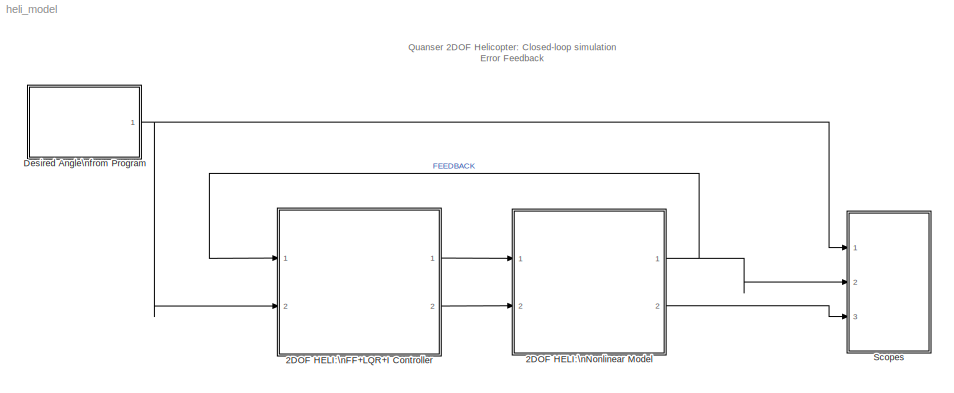
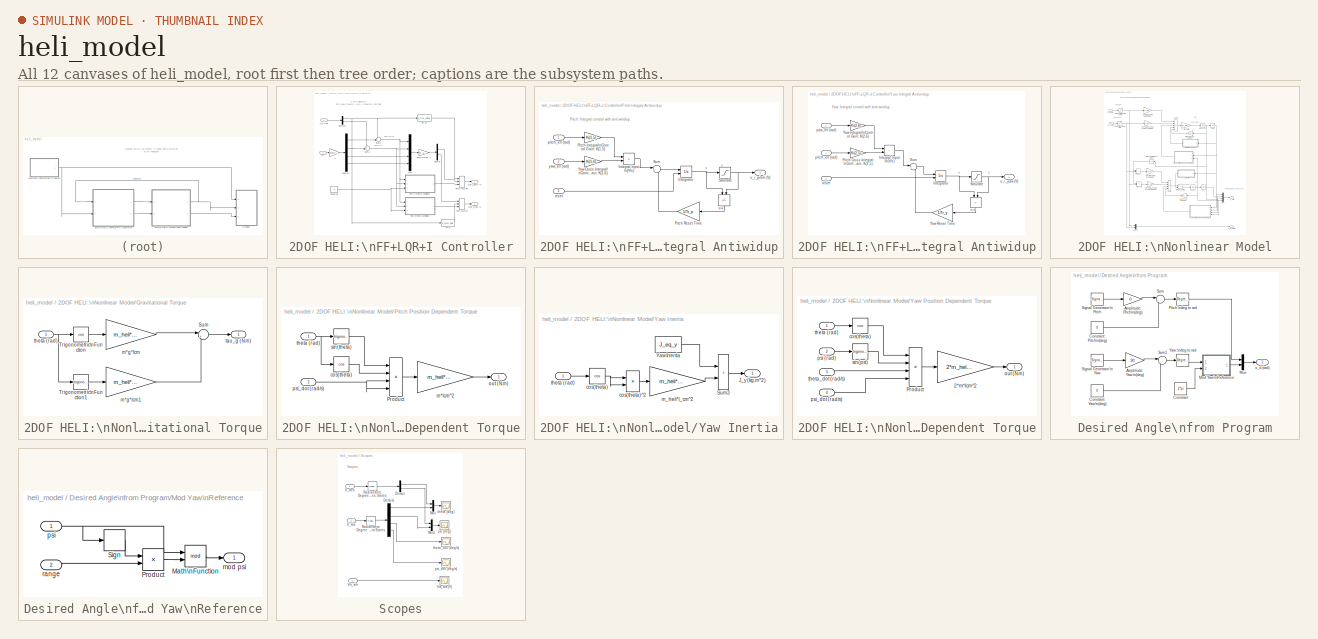
[diagram: thumbnail index - all 12 canvases of the model, root first then tree order]
MODEL heli_model
KIND model
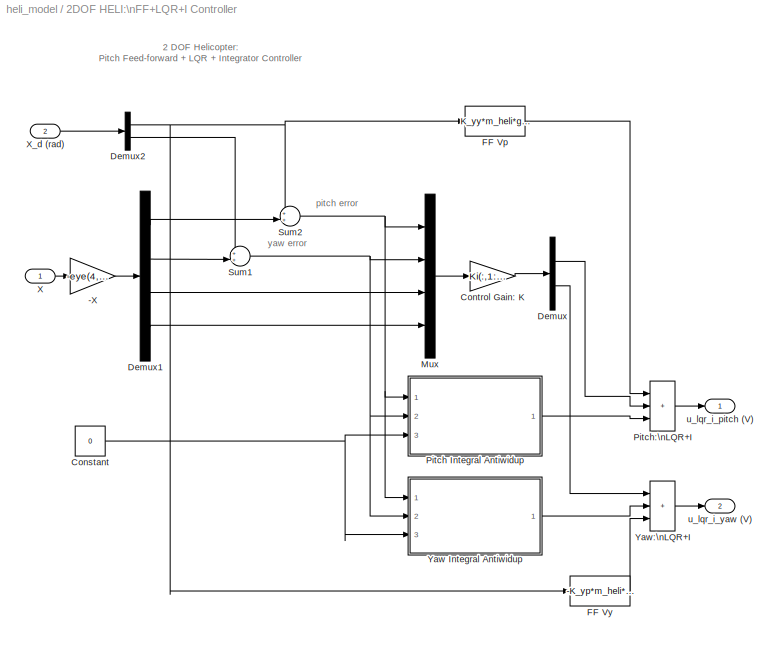
BLOCK [SubSystem] 2DOF HELI:\nFF+LQR+I Controller
  AncestorBlock = heli_2d_lib/2DOF HELI:\nFF+LQR+I Controller
  Ports = [2, 2]
  RequestExecContextInheritance = off
  SID = 1
BLOCK [Gain] 2DOF HELI:\nFF+LQR+I Controller/-X
  Gain = -eye(4,4)
  Multiplication = Matrix(K*u)
  SID = 1:3
BLOCK [Constant] 2DOF HELI:\nFF+LQR+I Controller/Constant
  SID = 1:4
  Value = 0
BLOCK [Gain] 2DOF HELI:\nFF+LQR+I Controller/Control Gain: K
  Gain = Ki(:,1:4)
  Multiplication = Matrix(K*u)
  SID = 1:5
BLOCK [Demux] 2DOF HELI:\nFF+LQR+I Controller/Demux
  Outputs = 2
  Ports = [1, 2]
  SID = 1:6
BLOCK [Demux] 2DOF HELI:\nFF+LQR+I Controller/Demux1
  Ports = [1, 4]
  SID = 1:7
BLOCK [Demux] 2DOF HELI:\nFF+LQR+I Controller/Demux2
  Outputs = 2
  Ports = [1, 2]
  SID = 1:8
BLOCK [Fcn] 2DOF HELI:\nFF+LQR+I Controller/FF Vp
  Expr = K_yy*m_heli*g*(h*sin(u[1]) + Rc*cos(u[1]))  /  (K_pp*K_yy-K_py*K_yp)
  SID = 1:9
BLOCK [Fcn] 2DOF HELI:\nFF+LQR+I Controller/FF Vy
  Expr = -K_yp*m_heli*g*(h*sin(u[1]) + Rc*cos(u[1]))  /  (K_pp*K_yy-K_py*K_yp)
  SID = 1:10
BLOCK [Mux] 2DOF HELI:\nFF+LQR+I Controller/Mux
  DisplayOption = bar
  Ports = [4, 1]
  SID = 1:11
BLOCK [SubSystem] 2DOF HELI:\nFF+LQR+I Controller/Pitch Integral Antiwidup
  AncestorBlock = heli_2d_lib/2DOF HELI:\nFF+LQR+I Controller/Yaw Integral Antiwidup
  Ports = [3, 1]
  RequestExecContextInheritance = off
  SID = 1:12
BLOCK [Sum] 2DOF HELI:\nFF+LQR+I Controller/Pitch Integral Antiwidup/Integral Input \n(V//s)
  IconShape = rectangular
  Ports = [2, 1]
  SID = 1:12:4
BLOCK [Integrator] 2DOF HELI:\nFF+LQR+I Controller/Pitch Integral Antiwidup/Integrator
  ExternalReset = rising
  Ports = [2, 1]
  SID = 1:12:5
BLOCK [Gain] 2DOF HELI:\nFF+LQR+I Controller/Pitch Integral Antiwidup/Pitch Integral\nControl Gain: K(1,5)
  Gain = Ki(1,5)
  Multiplication = Matrix(K*u)
  SID = 1:12:6
BLOCK [Gain] 2DOF HELI:\nFF+LQR+I Controller/Pitch Integral Antiwidup/Pitch Reset Time
  Gain = 1/Tr_p
  SID = 1:12:7
BLOCK [Saturate] 2DOF HELI:\nFF+LQR+I Controller/Pitch Integral Antiwidup/Saturate
  LowerLimit = -SAT_INT_ERR_PITCH
  SID = 1:12:8
  UpperLimit = SAT_INT_ERR_PITCH
BLOCK [Sum] 2DOF HELI:\nFF+LQR+I Controller/Pitch Integral Antiwidup/Sum
  Inputs = |++
  Ports = [2, 1]
  SID = 1:12:9
BLOCK [Gain] 2DOF HELI:\nFF+LQR+I Controller/Pitch Integral Antiwidup/Yaw Cross-Integral\nControl Gain: K(1,6)
  Gain = Ki(1,6)
  Multiplication = Matrix(K*u)
  SID = 1:12:10
BLOCK [Inport] 2DOF HELI:\nFF+LQR+I Controller/Pitch Integral Antiwidup/pitch_err (rad)
  SID = 1:12:1
BLOCK [Inport] 2DOF HELI:\nFF+LQR+I Controller/Pitch Integral Antiwidup/reset
  Port = 3
  SID = 1:12:3
BLOCK [Sum] 2DOF HELI:\nFF+LQR+I Controller/Pitch Integral Antiwidup/u-v
  IconShape = rectangular
  Inputs = -+
  NameLocation = right
  Ports = [2, 1]
  SID = 1:12:11
BLOCK [Outport] 2DOF HELI:\nFF+LQR+I Controller/Pitch Integral Antiwidup/u_i_pitch (V)
  SID = 1:12:12
BLOCK [Inport] 2DOF HELI:\nFF+LQR+I Controller/Pitch Integral Antiwidup/yaw_err (rad)
  Port = 2
  SID = 1:12:2
BLOCK [Sum] 2DOF HELI:\nFF+LQR+I Controller/Pitch:\nLQR+I
  IconShape = rectangular
  Inputs = +++
  Ports = [3, 1]
  SID = 1:13
BLOCK [Sum] 2DOF HELI:\nFF+LQR+I Controller/Sum1
  Inputs = ++|
  Ports = [2, 1]
  SID = 1:14
BLOCK [Sum] 2DOF HELI:\nFF+LQR+I Controller/Sum2
  Inputs = ++|
  Ports = [2, 1]
  SID = 1:15
BLOCK [Inport] 2DOF HELI:\nFF+LQR+I Controller/X
  SID = 1:1
BLOCK [Inport] 2DOF HELI:\nFF+LQR+I Controller/X_d (rad)
  Port = 2
  SID = 1:2
BLOCK [SubSystem] 2DOF HELI:\nFF+LQR+I Controller/Yaw Integral Antiwidup
  Ports = [3, 1]
  RequestExecContextInheritance = off
  SID = 1:16
BLOCK [Sum] 2DOF HELI:\nFF+LQR+I Controller/Yaw Integral Antiwidup/Integral Input \n(V//s)
  IconShape = rectangular
  Ports = [2, 1]
  SID = 1:20
BLOCK [Integrator] 2DOF HELI:\nFF+LQR+I Controller/Yaw Integral Antiwidup/Integrator
  ExternalReset = rising
  Ports = [2, 1]
  SID = 1:21
BLOCK [Gain] 2DOF HELI:\nFF+LQR+I Controller/Yaw Integral Antiwidup/Pitch Cross-Integral\nControl Gain: K(2,5)
  Gain = Ki(2,5)
  Multiplication = Matrix(K*u)
  SID = 1:22
BLOCK [Saturate] 2DOF HELI:\nFF+LQR+I Controller/Yaw Integral Antiwidup/Saturate
  LowerLimit = -SAT_INT_ERR_YAW
  SID = 1:23
  UpperLimit = SAT_INT_ERR_YAW
BLOCK [Sum] 2DOF HELI:\nFF+LQR+I Controller/Yaw Integral Antiwidup/Sum
  Inputs = |++
  Ports = [2, 1]
  SID = 1:24
BLOCK [Gain] 2DOF HELI:\nFF+LQR+I Controller/Yaw Integral Antiwidup/Yaw Integral\nControl Gain: K(2,6)
  Gain = Ki(2,6)
  Multiplication = Matrix(K*u)
  SID = 1:25
BLOCK [Gain] 2DOF HELI:\nFF+LQR+I Controller/Yaw Integral Antiwidup/Yaw Reset Time
  Gain = 1/Tr_y
  SID = 1:26
BLOCK [Inport] 2DOF HELI:\nFF+LQR+I Controller/Yaw Integral Antiwidup/pitch_err (rad)
  SID = 1:17
BLOCK [Inport] 2DOF HELI:\nFF+LQR+I Controller/Yaw Integral Antiwidup/reset
  Port = 3
  SID = 1:19
BLOCK [Sum] 2DOF HELI:\nFF+LQR+I Controller/Yaw Integral Antiwidup/u-v
  IconShape = rectangular
  Inputs = -+
  NameLocation = right
  Ports = [2, 1]
  SID = 1:27
BLOCK [Outport] 2DOF HELI:\nFF+LQR+I Controller/Yaw Integral Antiwidup/u_i_yaw (V)
  SID = 1:28
BLOCK [Inport] 2DOF HELI:\nFF+LQR+I Controller/Yaw Integral Antiwidup/yaw_err (rad)
  Port = 2
  SID = 1:18
BLOCK [Sum] 2DOF HELI:\nFF+LQR+I Controller/Yaw:\nLQR+I
  IconShape = rectangular
  Inputs = +++
  Ports = [3, 1]
  SID = 1:32
BLOCK [Outport] 2DOF HELI:\nFF+LQR+I Controller/u_lqr_i_pitch (V)
  SID = 1:33
BLOCK [Outport] 2DOF HELI:\nFF+LQR+I Controller/u_lqr_i_yaw (V)
  Port = 2
  SID = 1:34
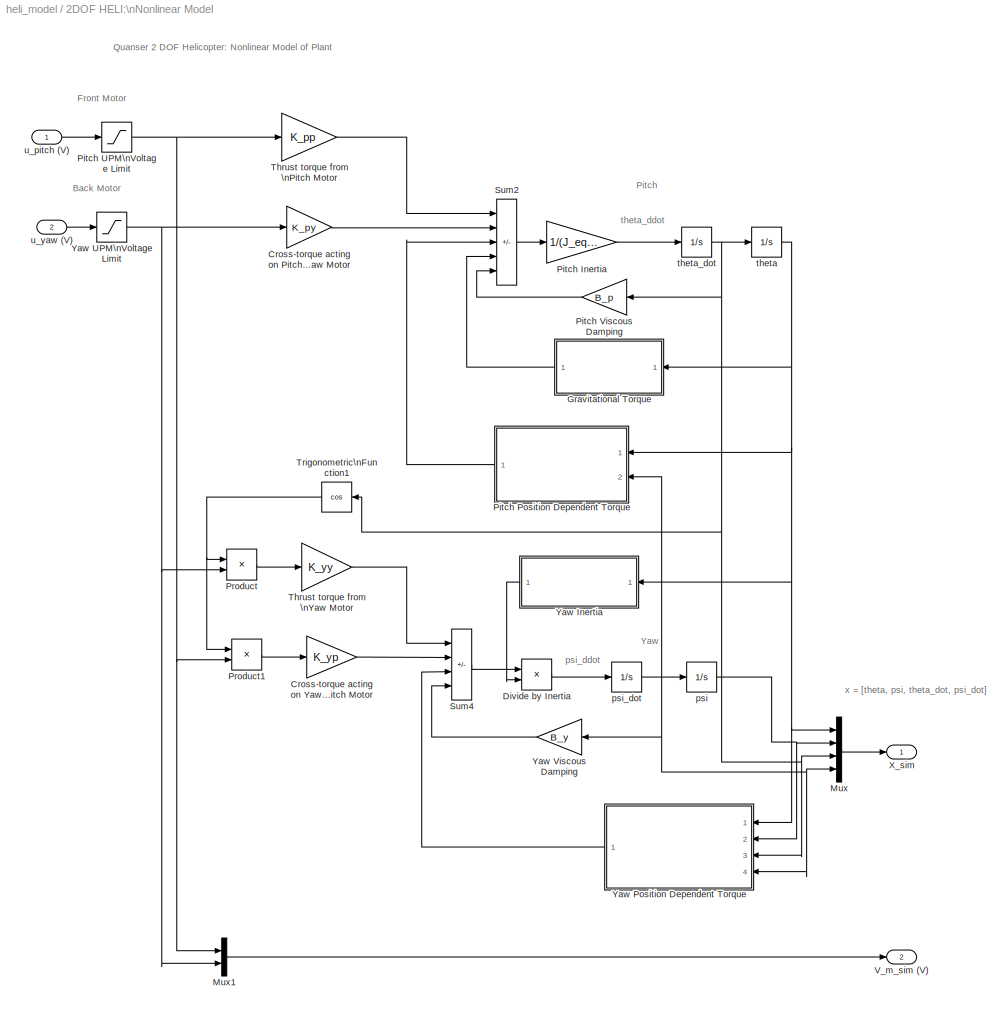
BLOCK [SubSystem] 2DOF HELI:\nNonlinear Model
  AncestorBlock = heli_2d_lib/2DOF HELI:\nNonlinear Model
  Ports = [2, 2]
  RequestExecContextInheritance = off
  SID = 2
BLOCK [Gain] 2DOF HELI:\nNonlinear Model/Cross-torque acting on Pitch \nfrom Yaw Motor
  Gain = K_py
  SID = 2:3
BLOCK [Gain] 2DOF HELI:\nNonlinear Model/Cross-torque acting on Yaw \nfrom Pitch Motor
  Gain = K_yp
  SID = 2:4
BLOCK [Product] 2DOF HELI:\nNonlinear Model/Divide by Inertia
  Inputs = */
  Ports = [2, 1]
  SID = 2:5
BLOCK [SubSystem] 2DOF HELI:\nNonlinear Model/Gravitational Torque
  Ports = [1, 1]
  RequestExecContextInheritance = off
  SID = 2:6
BLOCK [Sum] 2DOF HELI:\nNonlinear Model/Gravitational Torque/Sum
  Inputs = |++
  Ports = [2, 1]
  SID = 2:8
BLOCK [Trigonometry] 2DOF HELI:\nNonlinear Model/Gravitational Torque/Trigonometric\nFunction
  Operator = cos
  OutputSignalType = real
  Ports = [1, 1]
  SID = 2:9
BLOCK [Trigonometry] 2DOF HELI:\nNonlinear Model/Gravitational Torque/Trigonometric\nFunction1
  OutputSignalType = real
  Ports = [1, 1]
  SID = 2:10
BLOCK [Gain] 2DOF HELI:\nNonlinear Model/Gravitational Torque/m*g*lcm
  Gain = m_heli*g*l_cm
  SID = 2:11
BLOCK [Gain] 2DOF HELI:\nNonlinear Model/Gravitational Torque/m*g*lcm1
  Gain = m_heli*g*h
  SID = 2:12
BLOCK [Outport] 2DOF HELI:\nNonlinear Model/Gravitational Torque/tau_g (N.m)
  SID = 2:13
BLOCK [Inport] 2DOF HELI:\nNonlinear Model/Gravitational Torque/theta (rad)
  SID = 2:7
BLOCK [Mux] 2DOF HELI:\nNonlinear Model/Mux
  DisplayOption = bar
  Ports = [4, 1]
  SID = 2:14
BLOCK [Mux] 2DOF HELI:\nNonlinear Model/Mux1
  DisplayOption = bar
  Inputs = 2
  Ports = [2, 1]
  SID = 2:15
BLOCK [Gain] 2DOF HELI:\nNonlinear Model/Pitch Inertia
  Gain = 1/(J_eq_p+m_heli*l_cm^2)
  SID = 2:16
BLOCK [SubSystem] 2DOF HELI:\nNonlinear Model/Pitch Position Dependent Torque
  AncestorBlock = heli_2d_lib/2DOF Helicopter:\nNonlinear Model/Yaw Nonlinear Element
  Ports = [2, 1]
  RequestExecContextInheritance = off
  SID = 2:17
BLOCK [Product] 2DOF HELI:\nNonlinear Model/Pitch Position Dependent Torque/Product
  Inputs = 4
  Ports = [4, 1]
  RndMeth = Zero
  SID = 2:17:3
BLOCK [Trigonometry] 2DOF HELI:\nNonlinear Model/Pitch Position Dependent Torque/cos(theta)
  Operator = cos
  OutputSignalType = real
  Ports = [1, 1]
  SID = 2:17:4
BLOCK [Gain] 2DOF HELI:\nNonlinear Model/Pitch Position Dependent Torque/m*lcm^2
  Gain = m_heli*l_cm^2
  SID = 2:17:5
BLOCK [Outport] 2DOF HELI:\nNonlinear Model/Pitch Position Dependent Torque/out (N.m)
  SID = 2:17:7
BLOCK [Inport] 2DOF HELI:\nNonlinear Model/Pitch Position Dependent Torque/psi_dot (rad//s)
  Port = 2
  SID = 2:17:2
BLOCK [Trigonometry] 2DOF HELI:\nNonlinear Model/Pitch Position Dependent Torque/sin(theta)
  OutputSignalType = real
  Ports = [1, 1]
  SID = 2:17:6
BLOCK [Inport] 2DOF HELI:\nNonlinear Model/Pitch Position Dependent Torque/theta (rad)
  SID = 2:17:1
BLOCK [Saturate] 2DOF HELI:\nNonlinear Model/Pitch UPM\nVoltage Limit
  LowerLimit = - VMAX_UPM_P
  SID = 2:18
  UpperLimit = VMAX_UPM_P
BLOCK [Gain] 2DOF HELI:\nNonlinear Model/Pitch Viscous Damping
  Gain = B_p
  SID = 2:19
BLOCK [Product] 2DOF HELI:\nNonlinear Model/Product
  Ports = [2, 1]
  RndMeth = Zero
  SID = 2:20
BLOCK [Product] 2DOF HELI:\nNonlinear Model/Product1
  Ports = [2, 1]
  RndMeth = Zero
  SID = 2:21
BLOCK [Sum] 2DOF HELI:\nNonlinear Model/Sum2
  IconShape = rectangular
  Inputs = ++---
  Ports = [5, 1]
  SID = 2:22
BLOCK [Sum] 2DOF HELI:\nNonlinear Model/Sum4
  IconShape = rectangular
  Inputs = +++-
  Ports = [4, 1]
  SID = 2:23
BLOCK [Gain] 2DOF HELI:\nNonlinear Model/Thrust torque from \nPitch Motor
  Gain = K_pp
  SID = 2:24
BLOCK [Gain] 2DOF HELI:\nNonlinear Model/Thrust torque from \nYaw Motor
  Gain = K_yy
  SID = 2:25
BLOCK [Trigonometry] 2DOF HELI:\nNonlinear Model/Trigonometric\nFunction1
  NameLocation = top
  Operator = cos
  OutputSignalType = real
  Ports = [1, 1]
  SID = 2:26
BLOCK [Outport] 2DOF HELI:\nNonlinear Model/V_m_sim (V)
  Port = 2
  SID = 2:52
BLOCK [Outport] 2DOF HELI:\nNonlinear Model/X_sim
  SID = 2:51
BLOCK [SubSystem] 2DOF HELI:\nNonlinear Model/Yaw Inertia
  Ports = [1, 1]
  RequestExecContextInheritance = off
  SID = 2:27
BLOCK [Outport] 2DOF HELI:\nNonlinear Model/Yaw Inertia/J_y (kg.m^2)
  SID = 2:34
BLOCK [Sum] 2DOF HELI:\nNonlinear Model/Yaw Inertia/Sum3
  IconShape = rectangular
  Ports = [2, 1]
  SID = 2:29
BLOCK [Constant] 2DOF HELI:\nNonlinear Model/Yaw Inertia/Yaw Inertia
  SID = 2:30
  Value = J_eq_y
BLOCK [Trigonometry] 2DOF HELI:\nNonlinear Model/Yaw Inertia/cos(theta)
  Operator = cos
  OutputSignalType = real
  Ports = [1, 1]
  SID = 2:31
BLOCK [Product] 2DOF HELI:\nNonlinear Model/Yaw Inertia/cos(theta)^2
  Ports = [2, 1]
  RndMeth = Zero
  SID = 2:32
BLOCK [Gain] 2DOF HELI:\nNonlinear Model/Yaw Inertia/m_heli*l_cm^2
  Gain = m_heli*l_cm^2
  SID = 2:33
BLOCK [Inport] 2DOF HELI:\nNonlinear Model/Yaw Inertia/theta (rad)
  SID = 2:28
BLOCK [SubSystem] 2DOF HELI:\nNonlinear Model/Yaw Position Dependent Torque
  Ports = [4, 1]
  RequestExecContextInheritance = off
  SID = 2:35
BLOCK [Gain] 2DOF HELI:\nNonlinear Model/Yaw Position Dependent Torque/2*m*lcm^2
  Gain = 2*m_heli*l_cm^2
  SID = 2:40
BLOCK [Product] 2DOF HELI:\nNonlinear Model/Yaw Position Dependent Torque/Product
  Inputs = 4
  Ports = [4, 1]
  RndMeth = Zero
  SID = 2:41
BLOCK [Trigonometry] 2DOF HELI:\nNonlinear Model/Yaw Position Dependent Torque/cos(theta)
  Operator = cos
  OutputSignalType = real
  Ports = [1, 1]
  SID = 2:42
BLOCK [Outport] 2DOF HELI:\nNonlinear Model/Yaw Position Dependent Torque/out (N.m)
  SID = 2:44
BLOCK [Inport] 2DOF HELI:\nNonlinear Model/Yaw Position Dependent Torque/psi (rad)
  Port = 2
  SID = 2:37
BLOCK [Inport] 2DOF HELI:\nNonlinear Model/Yaw Position Dependent Torque/psi_dot (rad//s)
  Port = 4
  SID = 2:39
BLOCK [Trigonometry] 2DOF HELI:\nNonlinear Model/Yaw Position Dependent Torque/sin(psi)
  OutputSignalType = real
  Ports = [1, 1]
  SID = 2:43
BLOCK [Inport] 2DOF HELI:\nNonlinear Model/Yaw Position Dependent Torque/theta (rad)
  SID = 2:36
BLOCK [Inport] 2DOF HELI:\nNonlinear Model/Yaw Position Dependent Torque/theta_dot (rad//s)
  Port = 3
  SID = 2:38
BLOCK [Saturate] 2DOF HELI:\nNonlinear Model/Yaw UPM\nVoltage Limit
  LowerLimit = - VMAX_UPM_Y
  SID = 2:45
  UpperLimit = VMAX_UPM_Y
BLOCK [Gain] 2DOF HELI:\nNonlinear Model/Yaw Viscous Damping
  Gain = B_y
  SID = 2:46
BLOCK [Integrator] 2DOF HELI:\nNonlinear Model/psi
  Ports = [1, 1]
  SID = 2:47
BLOCK [Integrator] 2DOF HELI:\nNonlinear Model/psi_dot
  Ports = [1, 1]
  SID = 2:48
BLOCK [Integrator] 2DOF HELI:\nNonlinear Model/theta
  InitialCondition = theta_0
  LimitOutput = on
  LowerSaturationLimit = -40.5*pi/180
  Ports = [1, 1]
  SID = 2:49
  UpperSaturationLimit = 40.5*pi/180
BLOCK [Integrator] 2DOF HELI:\nNonlinear Model/theta_dot
  Ports = [1, 1]
  SID = 2:50
BLOCK [Inport] 2DOF HELI:\nNonlinear Model/u_pitch (V)
  SID = 2:1
BLOCK [Inport] 2DOF HELI:\nNonlinear Model/u_yaw (V)
  Port = 2
  SID = 2:2
BLOCK [SubSystem] Desired Angle\nfrom Program
  Ports = [0, 1]
  RequestExecContextInheritance = off
  SID = 3
BLOCK [Gain] Desired Angle\nfrom Program/Amplitude: Pitch\n(deg)
  Gain = 0
  SID = 4
BLOCK [Gain] Desired Angle\nfrom Program/Amplitude: Yaw\n(deg)
  Gain = 30
  SID = 5
BLOCK [Constant] Desired Angle\nfrom Program/Constant
  SID = 6
  Value = 2*pi
BLOCK [Constant] Desired Angle\nfrom Program/Constant: Pitch\n(deg)
  SID = 7
  Value = 0
BLOCK [Constant] Desired Angle\nfrom Program/Constant: Yaw\n(deg)
  SID = 8
  Value = 0
BLOCK [SubSystem] Desired Angle\nfrom Program/Mod Yaw\nReference
  Ports = [2, 1]
  RequestExecContextInheritance = off
  SID = 9
BLOCK [Math] Desired Angle\nfrom Program/Mod Yaw\nReference/Math\nFunction
  Operator = mod
  Ports = [2, 1]
  SID = 12
  SignedPower = on
BLOCK [Product] Desired Angle\nfrom Program/Mod Yaw\nReference/Product
  Ports = [2, 1]
  RndMeth = Zero
  SID = 13
BLOCK [Signum] Desired Angle\nfrom Program/Mod Yaw\nReference/Sign
  SID = 14
BLOCK [Outport] Desired Angle\nfrom Program/Mod Yaw\nReference/mod psi
  SID = 15
BLOCK [Inport] Desired Angle\nfrom Program/Mod Yaw\nReference/psi
  SID = 10
BLOCK [Inport] Desired Angle\nfrom Program/Mod Yaw\nReference/range
  Port = 2
  SID = 11
BLOCK [Mux] Desired Angle\nfrom Program/Mux
  DisplayOption = bar
  Inputs = 2
  Ports = [2, 1]
  SID = 16
BLOCK [Reference] Desired Angle\nfrom Program/Pitch:\ndeg to rad  REF=simulink_extras/Transformations/Degrees to\nRadians
  Ports = [1, 1]
  RTWMemSecDataConstants = Inherit from model
  RTWMemSecDataInternal = Inherit from model
  RTWMemSecDataParameters = Inherit from model
  RTWMemSecFuncExecute = Inherit from model
  RTWMemSecFuncInitTerm = Inherit from model
  SID = 17
  SourceBlock = simulink_extras/Transformations/Degrees to\nRadians
  SourceProductBaseCode = SL
  SourceType = DegreesToRadians
BLOCK [SignalGenerator] Desired Angle\nfrom Program/Signal Generator:\nPitch
  Frequency = 1/20
  Ports = [0, 1]
  SID = 18
  WaveForm = square
BLOCK [SignalGenerator] Desired Angle\nfrom Program/Signal Generator:\nYaw
  Frequency = 0.05
  Ports = [0, 1]
  SID = 19
  WaveForm = square
BLOCK [Sum] Desired Angle\nfrom Program/Sum
  Inputs = |++
  Ports = [2, 1]
  SID = 20
BLOCK [Sum] Desired Angle\nfrom Program/Sum1
  Inputs = |++
  Ports = [2, 1]
  SID = 21
BLOCK [Reference] Desired Angle\nfrom Program/Yaw:\ndeg to rad  REF=simulink_extras/Transformations/Degrees to\nRadians
  Ports = [1, 1]
  RTWMemSecDataConstants = Inherit from model
  RTWMemSecDataInternal = Inherit from model
  RTWMemSecDataParameters = Inherit from model
  RTWMemSecFuncExecute = Inherit from model
  RTWMemSecFuncInitTerm = Inherit from model
  SID = 22
  SourceBlock = simulink_extras/Transformations/Degrees to\nRadians
  SourceProductBaseCode = SL
  SourceType = DegreesToRadians
BLOCK [Outport] Desired Angle\nfrom Program/x_d (rad)
  SID = 23
BLOCK [SubSystem] Scopes
  AncestorBlock = heli_2d_lib/Scopes
  Ports = [3]
  RequestExecContextInheritance = off
  SID = 24
BLOCK [Demux] Scopes/Demux
  Outputs = 2
  Ports = [1, 2]
  SID = 24:4
BLOCK [Demux] Scopes/Demux1
  Ports = [1, 4]
  SID = 24:5
BLOCK [Mux] Scopes/Mux
  DisplayOption = bar
  Inputs = 2
  Ports = [2, 1]
  SID = 24:6
BLOCK [Mux] Scopes/Mux1
  DisplayOption = bar
  Inputs = 2
  Ports = [2, 1]
  SID = 24:7
BLOCK [Reference] Scopes/Radians\nto Degree -\nSim States  REF=simulink_extras/Transformations/Radians\nto Degrees
  Ports = [1, 1]
  RTWMemSecDataConstants = Inherit from model
  RTWMemSecDataInternal = Inherit from model
  RTWMemSecDataParameters = Inherit from model
  RTWMemSecFuncExecute = Inherit from model
  RTWMemSecFuncInitTerm = Inherit from model
  SID = 24:8
  SourceBlock = simulink_extras/Transformations/Radians\nto Degrees
  SourceProductBaseCode = SL
  SourceType = RadiansToDegrees
BLOCK [Reference] Scopes/Radians\nto Degrees -\nDes. States  REF=simulink_extras/Transformations/Radians\nto Degrees
  Ports = [1, 1]
  RTWMemSecDataConstants = Inherit from model
  RTWMemSecDataInternal = Inherit from model
  RTWMemSecDataParameters = Inherit from model
  RTWMemSecFuncExecute = Inherit from model
  RTWMemSecFuncInitTerm = Inherit from model
  SID = 24:9
  SourceBlock = simulink_extras/Transformations/Radians\nto Degrees
  SourceProductBaseCode = SL
  SourceType = RadiansToDegrees
BLOCK [Inport] Scopes/Vm_sim
  Port = 3
  SID = 24:3
BLOCK [Scope] Scopes/Vm_sim (V)
  Floating = off
  NumInputPorts = 1
  Ports = [1]
  SID = 24:10
  ScopeSpecificationString = C++SS(StrPVP('Location','[6, 563, 642, 936]'),StrPVP('Open','off'),StrPVP('TickLabels','on'),StrPVP('ZoomMode','xonly'),MxPVP('AxesTitles',54,'struct(''axes1'',''%<SignalLabel>'')'),StrPVP('TimeRange','50'),StrPVP('YMin','-10'),StrPVP('YMax','25'),StrPVP('SaveName','ScopeData5'),StrPVP('DataFormat','Array'),StrPVP('LimitDataPoints','off'),StrPVP('BlockParamSampleTime','0'),StrPVP('Decimation','1')...<+39ch>
BLOCK [Inport] Scopes/X_des
  SID = 24:1
BLOCK [Inport] Scopes/X_sim
  Port = 2
  SID = 24:2
BLOCK [Scope] Scopes/psi (deg)
  Floating = off
  NumInputPorts = 1
  Ports = [1]
  SID = 24:11
  ScopeSpecificationString = Simulink.scopes.TimeScopeBlockCfg('CurrentConfiguration', extmgr.ConfigurationSet(extmgr.Configuration('Core','General UI',true),extmgr.Configuration('Core','Source UI',true),extmgr.Configuration('Sources','WiredSimulink',true,'DataLoggingVariableName','ScopeData1','DataLoggingSaveFormat','Array','DataLoggingDecimation','1','DataLoggingDecimateData',true),extmgr.Configuration('Visuals','Time Domai...<+1719ch>
BLOCK [Scope] Scopes/psi_dot (deg//s)
  Floating = off
  NumInputPorts = 1
  Ports = [1]
  SID = 24:12
  ScopeSpecificationString = C++SS(StrPVP('Location','[6, 538, 657, 984]'),StrPVP('Open','off'),StrPVP('TickLabels','on'),MxPVP('AxesTitles',54,'struct(''axes1'',''%<SignalLabel>'')'),StrPVP('TimeRange','50'),StrPVP('YMin','-300'),StrPVP('YMax','300'),StrPVP('SaveName','ScopeData3'),StrPVP('DataFormat','Array'),StrPVP('LimitDataPoints','off'),StrPVP('BlockParamSampleTime','0'),StrPVP('Decimation','1'),StrPVP('BlockParamSample...<+14ch>
BLOCK [Scope] Scopes/theta (deg)
  Floating = off
  NumInputPorts = 1
  Ports = [1]
  SID = 24:13
  ScopeSpecificationString = Simulink.scopes.TimeScopeBlockCfg('CurrentConfiguration', extmgr.ConfigurationSet(extmgr.Configuration('Core','General UI',true),extmgr.Configuration('Core','Source UI',true),extmgr.Configuration('Sources','WiredSimulink',true,'DataLoggingSaveFormat','Array','DataLoggingDecimation','1','DataLoggingDecimateData',true),extmgr.Configuration('Visuals','Time Domain',true,'TimeAxisLabels','All','Seriali...<+1680ch>
BLOCK [Scope] Scopes/theta_dot (deg//s)
  Floating = off
  NumInputPorts = 1
  Ports = [1]
  SID = 24:14
  ScopeSpecificationString = C++SS(StrPVP('Location','[-671, 483, -44, 922]'),StrPVP('Open','off'),StrPVP('TickLabels','on'),MxPVP('AxesTitles',54,'struct(''axes1'',''%<SignalLabel>'')'),StrPVP('TimeRange','50'),StrPVP('YMin','-300'),StrPVP('YMax','300'),StrPVP('SaveName','ScopeData2'),StrPVP('DataFormat','Array'),StrPVP('LimitDataPoints','off'),StrPVP('BlockParamSampleTime','0'),StrPVP('Decimation','1'),StrPVP('BlockParamSam...<+17ch>
ANNOTATION (root): Quanser 2DOF Helicopter: Closed-loop simulation \nError Feedback
ANNOTATION 2DOF HELI:\nFF+LQR+I Controller: 2 DOF Helicopter:\nPitch Feed-forward + LQR + Integrator Controller
ANNOTATION 2DOF HELI:\nFF+LQR+I Controller: pitch error
ANNOTATION 2DOF HELI:\nFF+LQR+I Controller: yaw error
ANNOTATION 2DOF HELI:\nFF+LQR+I Controller/Pitch Integral Antiwidup: Pitch: Integral control with anti-windup.
ANNOTATION 2DOF HELI:\nFF+LQR+I Controller/Pitch Integral Antiwidup: u
ANNOTATION 2DOF HELI:\nFF+LQR+I Controller/Pitch Integral Antiwidup: v
ANNOTATION 2DOF HELI:\nFF+LQR+I Controller/Yaw Integral Antiwidup: Yaw: Integral control with anti-windup.
ANNOTATION 2DOF HELI:\nFF+LQR+I Controller/Yaw Integral Antiwidup: u
ANNOTATION 2DOF HELI:\nFF+LQR+I Controller/Yaw Integral Antiwidup: v
ANNOTATION 2DOF HELI:\nNonlinear Model: Back Motor
ANNOTATION 2DOF HELI:\nNonlinear Model: Front Motor
ANNOTATION 2DOF HELI:\nNonlinear Model: Pitch
ANNOTATION 2DOF HELI:\nNonlinear Model: Quanser 2 DOF Helicopter: Nonlinear Model of Plant
ANNOTATION 2DOF HELI:\nNonlinear Model: Yaw
ANNOTATION 2DOF HELI:\nNonlinear Model: psi_ddot
ANNOTATION 2DOF HELI:\nNonlinear Model: theta_ddot
ANNOTATION 2DOF HELI:\nNonlinear Model: x = [theta, psi, theta_dot, psi_dot]
ANNOTATION Scopes: Scopes
LINE 2DOF HELI:\nFF+LQR+I Controller/-X:1 -> 2DOF HELI:\nFF+LQR+I Controller/Demux1:1
NET 2DOF HELI:\nFF+LQR+I Controller/Constant:1 -> 2DOF HELI:\nFF+LQR+I Controller/Pitch Integral Antiwidup:3, 2DOF HELI:\nFF+LQR+I Controller/Yaw Integral Antiwidup:3
LINE 2DOF HELI:\nFF+LQR+I Controller/Control Gain: K:1 -> 2DOF HELI:\nFF+LQR+I Controller/Demux:1
LINE 2DOF HELI:\nFF+LQR+I Controller/Demux1:1 -> 2DOF HELI:\nFF+LQR+I Controller/Sum2:2
LINE 2DOF HELI:\nFF+LQR+I Controller/Demux1:2 -> 2DOF HELI:\nFF+LQR+I Controller/Sum1:2
LINE 2DOF HELI:\nFF+LQR+I Controller/Demux1:3 -> 2DOF HELI:\nFF+LQR+I Controller/Mux:3
LINE 2DOF HELI:\nFF+LQR+I Controller/Demux1:4 -> 2DOF HELI:\nFF+LQR+I Controller/Mux:4
NET 2DOF HELI:\nFF+LQR+I Controller/Demux2:1 -> 2DOF HELI:\nFF+LQR+I Controller/FF Vp:1, 2DOF HELI:\nFF+LQR+I Controller/FF Vy:1, 2DOF HELI:\nFF+LQR+I Controller/Sum2:1
LINE 2DOF HELI:\nFF+LQR+I Controller/Demux2:2 -> 2DOF HELI:\nFF+LQR+I Controller/Sum1:1
LINE 2DOF HELI:\nFF+LQR+I Controller/Demux:1 -> 2DOF HELI:\nFF+LQR+I Controller/Pitch:\nLQR+I:2
LINE 2DOF HELI:\nFF+LQR+I Controller/Demux:2 -> 2DOF HELI:\nFF+LQR+I Controller/Yaw:\nLQR+I:1
LINE 2DOF HELI:\nFF+LQR+I Controller/FF Vp:1 -> 2DOF HELI:\nFF+LQR+I Controller/Pitch:\nLQR+I:1
LINE 2DOF HELI:\nFF+LQR+I Controller/FF Vy:1 -> 2DOF HELI:\nFF+LQR+I Controller/Yaw:\nLQR+I:3
LINE 2DOF HELI:\nFF+LQR+I Controller/Mux:1 -> 2DOF HELI:\nFF+LQR+I Controller/Control Gain: K:1
LINE 2DOF HELI:\nFF+LQR+I Controller/Pitch Integral Antiwidup/Integral Input \n(V//s):1 -> 2DOF HELI:\nFF+LQR+I Controller/Pitch Integral Antiwidup/Sum:1
NET 2DOF HELI:\nFF+LQR+I Controller/Pitch Integral Antiwidup/Integrator:1 -> 2DOF HELI:\nFF+LQR+I Controller/Pitch Integral Antiwidup/Saturate:1, 2DOF HELI:\nFF+LQR+I Controller/Pitch Integral Antiwidup/u-v:1
LINE 2DOF HELI:\nFF+LQR+I Controller/Pitch Integral Antiwidup/Pitch Integral\nControl Gain: K(1,5):1 -> 2DOF HELI:\nFF+LQR+I Controller/Pitch Integral Antiwidup/Integral Input \n(V//s):1
LINE 2DOF HELI:\nFF+LQR+I Controller/Pitch Integral Antiwidup/Pitch Reset Time:1 -> 2DOF HELI:\nFF+LQR+I Controller/Pitch Integral Antiwidup/Sum:2
NET 2DOF HELI:\nFF+LQR+I Controller/Pitch Integral Antiwidup/Saturate:1 -> 2DOF HELI:\nFF+LQR+I Controller/Pitch Integral Antiwidup/u-v:2, 2DOF HELI:\nFF+LQR+I Controller/Pitch Integral Antiwidup/u_i_pitch (V):1
LINE 2DOF HELI:\nFF+LQR+I Controller/Pitch Integral Antiwidup/Sum:1 -> 2DOF HELI:\nFF+LQR+I Controller/Pitch Integral Antiwidup/Integrator:1
LINE 2DOF HELI:\nFF+LQR+I Controller/Pitch Integral Antiwidup/Yaw Cross-Integral\nControl Gain: K(1,6):1 -> 2DOF HELI:\nFF+LQR+I Controller/Pitch Integral Antiwidup/Integral Input \n(V//s):2
LINE 2DOF HELI:\nFF+LQR+I Controller/Pitch Integral Antiwidup/pitch_err (rad):1 -> 2DOF HELI:\nFF+LQR+I Controller/Pitch Integral Antiwidup/Pitch Integral\nControl Gain: K(1,5):1
LINE 2DOF HELI:\nFF+LQR+I Controller/Pitch Integral Antiwidup/reset:1 -> 2DOF HELI:\nFF+LQR+I Controller/Pitch Integral Antiwidup/Integrator:2
LINE 2DOF HELI:\nFF+LQR+I Controller/Pitch Integral Antiwidup/u-v:1 -> 2DOF HELI:\nFF+LQR+I Controller/Pitch Integral Antiwidup/Pitch Reset Time:1
LINE 2DOF HELI:\nFF+LQR+I Controller/Pitch Integral Antiwidup/yaw_err (rad):1 -> 2DOF HELI:\nFF+LQR+I Controller/Pitch Integral Antiwidup/Yaw Cross-Integral\nControl Gain: K(1,6):1
LINE 2DOF HELI:\nFF+LQR+I Controller/Pitch Integral Antiwidup:1 -> 2DOF HELI:\nFF+LQR+I Controller/Pitch:\nLQR+I:3
LINE 2DOF HELI:\nFF+LQR+I Controller/Pitch:\nLQR+I:1 -> 2DOF HELI:\nFF+LQR+I Controller/u_lqr_i_pitch (V):1
NET 2DOF HELI:\nFF+LQR+I Controller/Sum1:1 -> 2DOF HELI:\nFF+LQR+I Controller/Mux:2, 2DOF HELI:\nFF+LQR+I Controller/Pitch Integral Antiwidup:2, 2DOF HELI:\nFF+LQR+I Controller/Yaw Integral Antiwidup:2
NET 2DOF HELI:\nFF+LQR+I Controller/Sum2:1 -> 2DOF HELI:\nFF+LQR+I Controller/Mux:1, 2DOF HELI:\nFF+LQR+I Controller/Pitch Integral Antiwidup:1, 2DOF HELI:\nFF+LQR+I Controller/Yaw Integral Antiwidup:1
LINE 2DOF HELI:\nFF+LQR+I Controller/X:1 -> 2DOF HELI:\nFF+LQR+I Controller/-X:1
LINE 2DOF HELI:\nFF+LQR+I Controller/X_d (rad):1 -> 2DOF HELI:\nFF+LQR+I Controller/Demux2:1
LINE 2DOF HELI:\nFF+LQR+I Controller/Yaw Integral Antiwidup/Integral Input \n(V//s):1 -> 2DOF HELI:\nFF+LQR+I Controller/Yaw Integral Antiwidup/Sum:1
NET 2DOF HELI:\nFF+LQR+I Controller/Yaw Integral Antiwidup/Integrator:1 -> 2DOF HELI:\nFF+LQR+I Controller/Yaw Integral Antiwidup/Saturate:1, 2DOF HELI:\nFF+LQR+I Controller/Yaw Integral Antiwidup/u-v:1
LINE 2DOF HELI:\nFF+LQR+I Controller/Yaw Integral Antiwidup/Pitch Cross-Integral\nControl Gain: K(2,5):1 -> 2DOF HELI:\nFF+LQR+I Controller/Yaw Integral Antiwidup/Integral Input \n(V//s):2
NET 2DOF HELI:\nFF+LQR+I Controller/Yaw Integral Antiwidup/Saturate:1 -> 2DOF HELI:\nFF+LQR+I Controller/Yaw Integral Antiwidup/u-v:2, 2DOF HELI:\nFF+LQR+I Controller/Yaw Integral Antiwidup/u_i_yaw (V):1
LINE 2DOF HELI:\nFF+LQR+I Controller/Yaw Integral Antiwidup/Sum:1 -> 2DOF HELI:\nFF+LQR+I Controller/Yaw Integral Antiwidup/Integrator:1
LINE 2DOF HELI:\nFF+LQR+I Controller/Yaw Integral Antiwidup/Yaw Integral\nControl Gain: K(2,6):1 -> 2DOF HELI:\nFF+LQR+I Controller/Yaw Integral Antiwidup/Integral Input \n(V//s):1
LINE 2DOF HELI:\nFF+LQR+I Controller/Yaw Integral Antiwidup/Yaw Reset Time:1 -> 2DOF HELI:\nFF+LQR+I Controller/Yaw Integral Antiwidup/Sum:2
LINE 2DOF HELI:\nFF+LQR+I Controller/Yaw Integral Antiwidup/pitch_err (rad):1 -> 2DOF HELI:\nFF+LQR+I Controller/Yaw Integral Antiwidup/Pitch Cross-Integral\nControl Gain: K(2,5):1
LINE 2DOF HELI:\nFF+LQR+I Controller/Yaw Integral Antiwidup/reset:1 -> 2DOF HELI:\nFF+LQR+I Controller/Yaw Integral Antiwidup/Integrator:2
LINE 2DOF HELI:\nFF+LQR+I Controller/Yaw Integral Antiwidup/u-v:1 -> 2DOF HELI:\nFF+LQR+I Controller/Yaw Integral Antiwidup/Yaw Reset Time:1
LINE 2DOF HELI:\nFF+LQR+I Controller/Yaw Integral Antiwidup/yaw_err (rad):1 -> 2DOF HELI:\nFF+LQR+I Controller/Yaw Integral Antiwidup/Yaw Integral\nControl Gain: K(2,6):1
LINE 2DOF HELI:\nFF+LQR+I Controller/Yaw Integral Antiwidup:1 -> 2DOF HELI:\nFF+LQR+I Controller/Yaw:\nLQR+I:2
LINE 2DOF HELI:\nFF+LQR+I Controller/Yaw:\nLQR+I:1 -> 2DOF HELI:\nFF+LQR+I Controller/u_lqr_i_yaw (V):1
LINE 2DOF HELI:\nFF+LQR+I Controller:1 -> 2DOF HELI:\nNonlinear Model:1
LINE 2DOF HELI:\nFF+LQR+I Controller:2 -> 2DOF HELI:\nNonlinear Model:2
LINE 2DOF HELI:\nNonlinear Model/Cross-torque acting on Pitch \nfrom Yaw Motor:1 -> 2DOF HELI:\nNonlinear Model/Sum2:2
LINE 2DOF HELI:\nNonlinear Model/Cross-torque acting on Yaw \nfrom Pitch Motor:1 -> 2DOF HELI:\nNonlinear Model/Sum4:2
LINE 2DOF HELI:\nNonlinear Model/Divide by Inertia:1 -> 2DOF HELI:\nNonlinear Model/psi_dot:1
LINE 2DOF HELI:\nNonlinear Model/Gravitational Torque/Sum:1 -> 2DOF HELI:\nNonlinear Model/Gravitational Torque/tau_g (N.m):1
LINE 2DOF HELI:\nNonlinear Model/Gravitational Torque/Trigonometric\nFunction1:1 -> 2DOF HELI:\nNonlinear Model/Gravitational Torque/m*g*lcm1:1
LINE 2DOF HELI:\nNonlinear Model/Gravitational Torque/Trigonometric\nFunction:1 -> 2DOF HELI:\nNonlinear Model/Gravitational Torque/m*g*lcm:1
LINE 2DOF HELI:\nNonlinear Model/Gravitational Torque/m*g*lcm1:1 -> 2DOF HELI:\nNonlinear Model/Gravitational Torque/Sum:2
LINE 2DOF HELI:\nNonlinear Model/Gravitational Torque/m*g*lcm:1 -> 2DOF HELI:\nNonlinear Model/Gravitational Torque/Sum:1
NET 2DOF HELI:\nNonlinear Model/Gravitational Torque/theta (rad):1 -> 2DOF HELI:\nNonlinear Model/Gravitational Torque/Trigonometric\nFunction1:1, 2DOF HELI:\nNonlinear Model/Gravitational Torque/Trigonometric\nFunction:1
LINE 2DOF HELI:\nNonlinear Model/Gravitational Torque:1 -> 2DOF HELI:\nNonlinear Model/Sum2:4
LINE 2DOF HELI:\nNonlinear Model/Mux1:1 -> 2DOF HELI:\nNonlinear Model/V_m_sim (V):1
LINE 2DOF HELI:\nNonlinear Model/Mux:1 -> 2DOF HELI:\nNonlinear Model/X_sim:1
LINE 2DOF HELI:\nNonlinear Model/Pitch Inertia:1 -> 2DOF HELI:\nNonlinear Model/theta_dot:1
LINE 2DOF HELI:\nNonlinear Model/Pitch Position Dependent Torque/Product:1 -> 2DOF HELI:\nNonlinear Model/Pitch Position Dependent Torque/m*lcm^2:1
LINE 2DOF HELI:\nNonlinear Model/Pitch Position Dependent Torque/cos(theta):1 -> 2DOF HELI:\nNonlinear Model/Pitch Position Dependent Torque/Product:2
LINE 2DOF HELI:\nNonlinear Model/Pitch Position Dependent Torque/m*lcm^2:1 -> 2DOF HELI:\nNonlinear Model/Pitch Position Dependent Torque/out (N.m):1
NET 2DOF HELI:\nNonlinear Model/Pitch Position Dependent Torque/psi_dot (rad//s):1 -> 2DOF HELI:\nNonlinear Model/Pitch Position Dependent Torque/Product:3, 2DOF HELI:\nNonlinear Model/Pitch Position Dependent Torque/Product:4
LINE 2DOF HELI:\nNonlinear Model/Pitch Position Dependent Torque/sin(theta):1 -> 2DOF HELI:\nNonlinear Model/Pitch Position Dependent Torque/Product:1
NET 2DOF HELI:\nNonlinear Model/Pitch Position Dependent Torque/theta (rad):1 -> 2DOF HELI:\nNonlinear Model/Pitch Position Dependent Torque/cos(theta):1, 2DOF HELI:\nNonlinear Model/Pitch Position Dependent Torque/sin(theta):1
LINE 2DOF HELI:\nNonlinear Model/Pitch Position Dependent Torque:1 -> 2DOF HELI:\nNonlinear Model/Sum2:3
NET 2DOF HELI:\nNonlinear Model/Pitch UPM\nVoltage Limit:1 -> 2DOF HELI:\nNonlinear Model/Mux1:1, 2DOF HELI:\nNonlinear Model/Product1:2, 2DOF HELI:\nNonlinear Model/Thrust torque from \nPitch Motor:1
LINE 2DOF HELI:\nNonlinear Model/Pitch Viscous Damping:1 -> 2DOF HELI:\nNonlinear Model/Sum2:5
LINE 2DOF HELI:\nNonlinear Model/Product1:1 -> 2DOF HELI:\nNonlinear Model/Cross-torque acting on Yaw \nfrom Pitch Motor:1
LINE 2DOF HELI:\nNonlinear Model/Product:1 -> 2DOF HELI:\nNonlinear Model/Thrust torque from \nYaw Motor:1
LINE 2DOF HELI:\nNonlinear Model/Sum2:1 -> 2DOF HELI:\nNonlinear Model/Pitch Inertia:1
LINE 2DOF HELI:\nNonlinear Model/Sum4:1 -> 2DOF HELI:\nNonlinear Model/Divide by Inertia:1
LINE 2DOF HELI:\nNonlinear Model/Thrust torque from \nPitch Motor:1 -> 2DOF HELI:\nNonlinear Model/Sum2:1
LINE 2DOF HELI:\nNonlinear Model/Thrust torque from \nYaw Motor:1 -> 2DOF HELI:\nNonlinear Model/Sum4:1
NET 2DOF HELI:\nNonlinear Model/Trigonometric\nFunction1:1 -> 2DOF HELI:\nNonlinear Model/Product1:1, 2DOF HELI:\nNonlinear Model/Product:1
LINE 2DOF HELI:\nNonlinear Model/Yaw Inertia/Sum3:1 -> 2DOF HELI:\nNonlinear Model/Yaw Inertia/J_y (kg.m^2):1
LINE 2DOF HELI:\nNonlinear Model/Yaw Inertia/Yaw Inertia:1 -> 2DOF HELI:\nNonlinear Model/Yaw Inertia/Sum3:1
NET 2DOF HELI:\nNonlinear Model/Yaw Inertia/cos(theta):1 -> 2DOF HELI:\nNonlinear Model/Yaw Inertia/cos(theta)^2:1, 2DOF HELI:\nNonlinear Model/Yaw Inertia/cos(theta)^2:2
LINE 2DOF HELI:\nNonlinear Model/Yaw Inertia/cos(theta)^2:1 -> 2DOF HELI:\nNonlinear Model/Yaw Inertia/m_heli*l_cm^2:1
LINE 2DOF HELI:\nNonlinear Model/Yaw Inertia/m_heli*l_cm^2:1 -> 2DOF HELI:\nNonlinear Model/Yaw Inertia/Sum3:2
LINE 2DOF HELI:\nNonlinear Model/Yaw Inertia/theta (rad):1 -> 2DOF HELI:\nNonlinear Model/Yaw Inertia/cos(theta):1
LINE 2DOF HELI:\nNonlinear Model/Yaw Inertia:1 -> 2DOF HELI:\nNonlinear Model/Divide by Inertia:2
LINE 2DOF HELI:\nNonlinear Model/Yaw Position Dependent Torque/2*m*lcm^2:1 -> 2DOF HELI:\nNonlinear Model/Yaw Position Dependent Torque/out (N.m):1
LINE 2DOF HELI:\nNonlinear Model/Yaw Position Dependent Torque/Product:1 -> 2DOF HELI:\nNonlinear Model/Yaw Position Dependent Torque/2*m*lcm^2:1
LINE 2DOF HELI:\nNonlinear Model/Yaw Position Dependent Torque/cos(theta):1 -> 2DOF HELI:\nNonlinear Model/Yaw Position Dependent Torque/Product:1
LINE 2DOF HELI:\nNonlinear Model/Yaw Position Dependent Torque/psi (rad):1 -> 2DOF HELI:\nNonlinear Model/Yaw Position Dependent Torque/sin(psi):1
LINE 2DOF HELI:\nNonlinear Model/Yaw Position Dependent Torque/psi_dot (rad//s):1 -> 2DOF HELI:\nNonlinear Model/Yaw Position Dependent Torque/Product:4
LINE 2DOF HELI:\nNonlinear Model/Yaw Position Dependent Torque/sin(psi):1 -> 2DOF HELI:\nNonlinear Model/Yaw Position Dependent Torque/Product:2
LINE 2DOF HELI:\nNonlinear Model/Yaw Position Dependent Torque/theta (rad):1 -> 2DOF HELI:\nNonlinear Model/Yaw Position Dependent Torque/cos(theta):1
LINE 2DOF HELI:\nNonlinear Model/Yaw Position Dependent Torque/theta_dot (rad//s):1 -> 2DOF HELI:\nNonlinear Model/Yaw Position Dependent Torque/Product:3
LINE 2DOF HELI:\nNonlinear Model/Yaw Position Dependent Torque:1 -> 2DOF HELI:\nNonlinear Model/Sum4:3
NET 2DOF HELI:\nNonlinear Model/Yaw UPM\nVoltage Limit:1 -> 2DOF HELI:\nNonlinear Model/Cross-torque acting on Pitch \nfrom Yaw Motor:1, 2DOF HELI:\nNonlinear Model/Mux1:2, 2DOF HELI:\nNonlinear Model/Product:2
LINE 2DOF HELI:\nNonlinear Model/Yaw Viscous Damping:1 -> 2DOF HELI:\nNonlinear Model/Sum4:4
NET 2DOF HELI:\nNonlinear Model/psi:1 -> 2DOF HELI:\nNonlinear Model/Mux:2, 2DOF HELI:\nNonlinear Model/Yaw Position Dependent Torque:2
NET 2DOF HELI:\nNonlinear Model/psi_dot:1 -> 2DOF HELI:\nNonlinear Model/Mux:4, 2DOF HELI:\nNonlinear Model/Pitch Position Dependent Torque:2, 2DOF HELI:\nNonlinear Model/Yaw Position Dependent Torque:4, 2DOF HELI:\nNonlinear Model/Yaw Viscous Damping:1, 2DOF HELI:\nNonlinear Model/psi:1
NET 2DOF HELI:\nNonlinear Model/theta:1 -> 2DOF HELI:\nNonlinear Model/Gravitational Torque:1, 2DOF HELI:\nNonlinear Model/Mux:1, 2DOF HELI:\nNonlinear Model/Pitch Position Dependent Torque:1, 2DOF HELI:\nNonlinear Model/Yaw Inertia:1, 2DOF HELI:\nNonlinear Model/Yaw Position Dependent Torque:1
NET 2DOF HELI:\nNonlinear Model/theta_dot:1 -> 2DOF HELI:\nNonlinear Model/Mux:3, 2DOF HELI:\nNonlinear Model/Pitch Viscous Damping:1, 2DOF HELI:\nNonlinear Model/Trigonometric\nFunction1:1, 2DOF HELI:\nNonlinear Model/Yaw Position Dependent Torque:3, 2DOF HELI:\nNonlinear Model/theta:1
LINE 2DOF HELI:\nNonlinear Model/u_pitch (V):1 -> 2DOF HELI:\nNonlinear Model/Pitch UPM\nVoltage Limit:1
LINE 2DOF HELI:\nNonlinear Model/u_yaw (V):1 -> 2DOF HELI:\nNonlinear Model/Yaw UPM\nVoltage Limit:1
NET 2DOF HELI:\nNonlinear Model:1 -> 2DOF HELI:\nFF+LQR+I Controller:1, Scopes:2
LINE 2DOF HELI:\nNonlinear Model:2 -> Scopes:3
LINE Desired Angle\nfrom Program/Amplitude: Pitch\n(deg):1 -> Desired Angle\nfrom Program/Sum:1
LINE Desired Angle\nfrom Program/Amplitude: Yaw\n(deg):1 -> Desired Angle\nfrom Program/Sum1:1
LINE Desired Angle\nfrom Program/Constant: Pitch\n(deg):1 -> Desired Angle\nfrom Program/Sum:2
LINE Desired Angle\nfrom Program/Constant: Yaw\n(deg):1 -> Desired Angle\nfrom Program/Sum1:2
LINE Desired Angle\nfrom Program/Constant:1 -> Desired Angle\nfrom Program/Mod Yaw\nReference:2
LINE Desired Angle\nfrom Program/Mod Yaw\nReference/Math\nFunction:1 -> Desired Angle\nfrom Program/Mod Yaw\nReference/mod psi:1
LINE Desired Angle\nfrom Program/Mod Yaw\nReference/Product:1 -> Desired Angle\nfrom Program/Mod Yaw\nReference/Math\nFunction:2
LINE Desired Angle\nfrom Program/Mod Yaw\nReference/Sign:1 -> Desired Angle\nfrom Program/Mod Yaw\nReference/Product:1
NET Desired Angle\nfrom Program/Mod Yaw\nReference/psi:1 -> Desired Angle\nfrom Program/Mod Yaw\nReference/Math\nFunction:1, Desired Angle\nfrom Program/Mod Yaw\nReference/Sign:1
LINE Desired Angle\nfrom Program/Mod Yaw\nReference/range:1 -> Desired Angle\nfrom Program/Mod Yaw\nReference/Product:2
LINE Desired Angle\nfrom Program/Mod Yaw\nReference:1 -> Desired Angle\nfrom Program/Mux:2
LINE Desired Angle\nfrom Program/Mux:1 -> Desired Angle\nfrom Program/x_d (rad):1
LINE Desired Angle\nfrom Program/Pitch:\ndeg to rad:1 -> Desired Angle\nfrom Program/Mux:1
LINE Desired Angle\nfrom Program/Signal Generator:\nPitch:1 -> Desired Angle\nfrom Program/Amplitude: Pitch\n(deg):1
LINE Desired Angle\nfrom Program/Signal Generator:\nYaw:1 -> Desired Angle\nfrom Program/Amplitude: Yaw\n(deg):1
LINE Desired Angle\nfrom Program/Sum1:1 -> Desired Angle\nfrom Program/Yaw:\ndeg to rad:1
LINE Desired Angle\nfrom Program/Sum:1 -> Desired Angle\nfrom Program/Pitch:\ndeg to rad:1
LINE Desired Angle\nfrom Program/Yaw:\ndeg to rad:1 -> Desired Angle\nfrom Program/Mod Yaw\nReference:1
NET Desired Angle\nfrom Program:1 -> 2DOF HELI:\nFF+LQR+I Controller:2, Scopes:1
LINE Scopes/Demux1:1 -> Scopes/Mux:2
LINE Scopes/Demux1:2 -> Scopes/Mux1:2
LINE Scopes/Demux1:3 -> Scopes/theta_dot (deg//s):1
LINE Scopes/Demux1:4 -> Scopes/psi_dot (deg//s):1
LINE Scopes/Demux:1 -> Scopes/Mux:1
LINE Scopes/Demux:2 -> Scopes/Mux1:1
LINE Scopes/Mux1:1 -> Scopes/psi (deg):1
LINE Scopes/Mux:1 -> Scopes/theta (deg):1
LINE Scopes/Radians\nto Degree -\nSim States:1 -> Scopes/Demux1:1
LINE Scopes/Radians\nto Degrees -\nDes. States:1 -> Scopes/Demux:1
LINE Scopes/Vm_sim:1 -> Scopes/Vm_sim (V):1
LINE Scopes/X_des:1 -> Scopes/Radians\nto Degrees -\nDes. States:1
LINE Scopes/X_sim:1 -> Scopes/Radians\nto Degree -\nSim States:1
note: NET lines group one-source signal fan-out (src -> all destinations, sorted); 1:1 wires keep LINE
